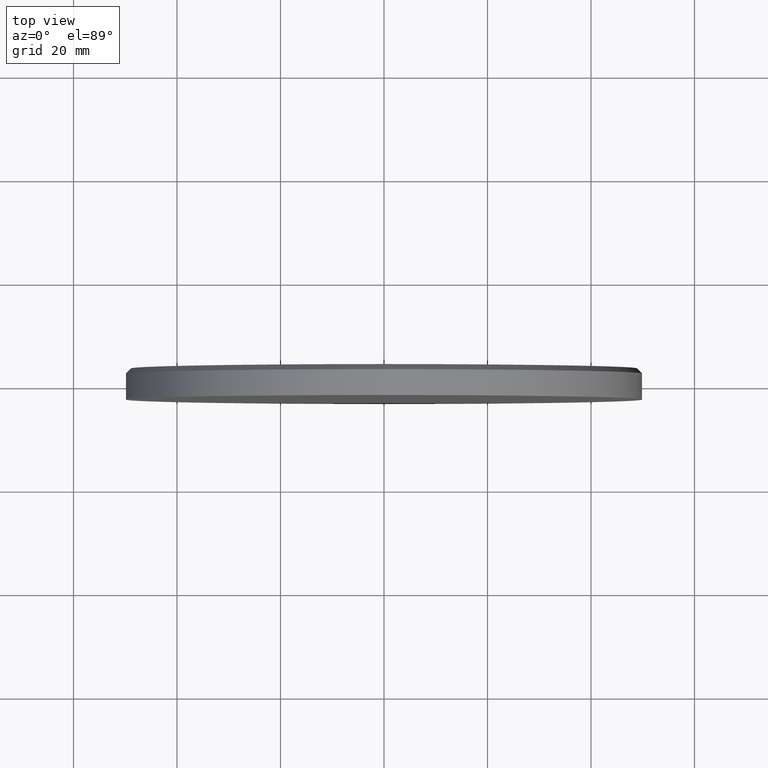
[diagram: clean part render]
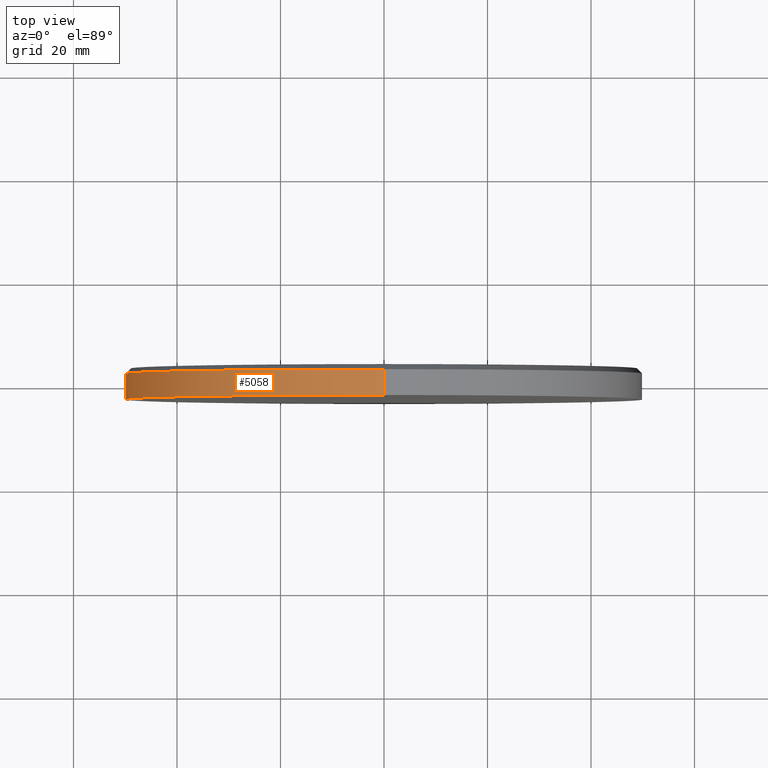
[diagram: same view with one face highlighted and labeled with its STEP entity id]
A machine part, top view. The second image highlights one B-rep face of the part: STEP entity #5058.
In plain terms, the highlighted cylindrical surface (partial cylindrical patch) has radius 50 mm, axis along (-0, -1, -0).
Its self-contained STEP definition (entity closure, byte-faithful):
#7 = CYLINDRICAL_SURFACE ( 'NONE', #1167, 50.00000000000000000 ) ;
#435 = VERTEX_POINT ( 'NONE', #10457 ) ;
#1167 = AXIS2_PLACEMENT_3D ( 'NONE', #1721, #12490, #7233 ) ;
#1721 = CARTESIAN_POINT ( 'NONE',  ( 0.000000000000000000, 3.000000000000000000, 0.000000000000000000 ) ) ;
#1932 = FACE_OUTER_BOUND ( 'NONE', #9784, .T. ) ;
#2142 = ORIENTED_EDGE ( 'NONE', *, *, #5201, .F. ) ;
#2151 = CARTESIAN_POINT ( 'NONE',  ( 0.000000000000000000, 3.000000000000000000, -50.00000000000000000 ) ) ;
#2348 = DIRECTION ( 'NONE',  ( 0.000000000000000000, 0.000000000000000000, 1.000000000000000000 ) ) ;
#2444 = CARTESIAN_POINT ( 'NONE',  ( 0.000000000000000000, -3.000000000000000000, 0.000000000000000000 ) ) ;
#2794 = ORIENTED_EDGE ( 'NONE', *, *, #12062, .T. ) ;
#2839 = AXIS2_PLACEMENT_3D ( 'NONE', #5721, #8003, #2348 ) ;
#2959 = VECTOR ( 'NONE', #8670, 1000.000000000000000 ) ;
#3274 = LINE ( 'NONE', #2151, #13728 ) ;
#4516 = ORIENTED_EDGE ( 'NONE', *, *, #12412, .T. ) ;
#5058 = ADVANCED_FACE ( 'NONE', ( #1932 ), #7, .T. ) ;
#5201 = EDGE_CURVE ( 'NONE', #7557, #6423, #9194, .T. ) ;
#5721 = CARTESIAN_POINT ( 'NONE',  ( 0.000000000000000000, 1.999999999999999112, 0.000000000000000000 ) ) ;
#5833 = CIRCLE ( 'NONE', #2839, 50.00000000000000000 ) ;
#6289 = AXIS2_PLACEMENT_3D ( 'NONE', #2444, #6963, #10391 ) ;
#6423 = VERTEX_POINT ( 'NONE', #9627 ) ;
#6963 = DIRECTION ( 'NONE',  ( 0.000000000000000000, 1.000000000000000000, 0.000000000000000000 ) ) ;
#7233 = DIRECTION ( 'NONE',  ( 0.000000000000000000, 0.000000000000000000, -1.000000000000000000 ) ) ;
#7291 = EDGE_CURVE ( 'NONE', #435, #8956, #3274, .T. ) ;
#7332 = ORIENTED_EDGE ( 'NONE', *, *, #7291, .T. ) ;
#7555 = CARTESIAN_POINT ( 'NONE',  ( 6.123233995736766085E-15, 3.000000000000000000, 50.00000000000000000 ) ) ;
#7557 = VERTEX_POINT ( 'NONE', #8666 ) ;
#8003 = DIRECTION ( 'NONE',  ( 0.000000000000000000, -1.000000000000000000, 0.000000000000000000 ) ) ;
#8378 = CARTESIAN_POINT ( 'NONE',  ( 0.000000000000000000, -3.000000000000000000, -50.00000000000000000 ) ) ;
#8666 = CARTESIAN_POINT ( 'NONE',  ( 6.123233995736766085E-15, 1.999999999999999112, 50.00000000000000000 ) ) ;
#8670 = DIRECTION ( 'NONE',  ( -0.000000000000000000, -1.000000000000000000, -0.000000000000000000 ) ) ;
#8956 = VERTEX_POINT ( 'NONE', #8378 ) ;
#9194 = LINE ( 'NONE', #7555, #2959 ) ;
#9627 = CARTESIAN_POINT ( 'NONE',  ( 6.123233995736766085E-15, -3.000000000000000000, 50.00000000000000000 ) ) ;
#9784 = EDGE_LOOP ( 'NONE', ( #2142, #4516, #7332, #2794 ) ) ;
#10002 = DIRECTION ( 'NONE',  ( -0.000000000000000000, -1.000000000000000000, -0.000000000000000000 ) ) ;
#10391 = DIRECTION ( 'NONE',  ( 0.000000000000000000, 0.000000000000000000, 1.000000000000000000 ) ) ;
#10457 = CARTESIAN_POINT ( 'NONE',  ( 0.000000000000000000, 1.999999999999999112, -50.00000000000000000 ) ) ;
#12062 = EDGE_CURVE ( 'NONE', #8956, #6423, #14369, .T. ) ;
#12412 = EDGE_CURVE ( 'NONE', #7557, #435, #5833, .T. ) ;
#12490 = DIRECTION ( 'NONE',  ( -0.000000000000000000, -1.000000000000000000, -0.000000000000000000 ) ) ;
#13728 = VECTOR ( 'NONE', #10002, 1000.000000000000000 ) ;
#14369 = CIRCLE ( 'NONE', #6289, 50.00000000000000000 ) ;